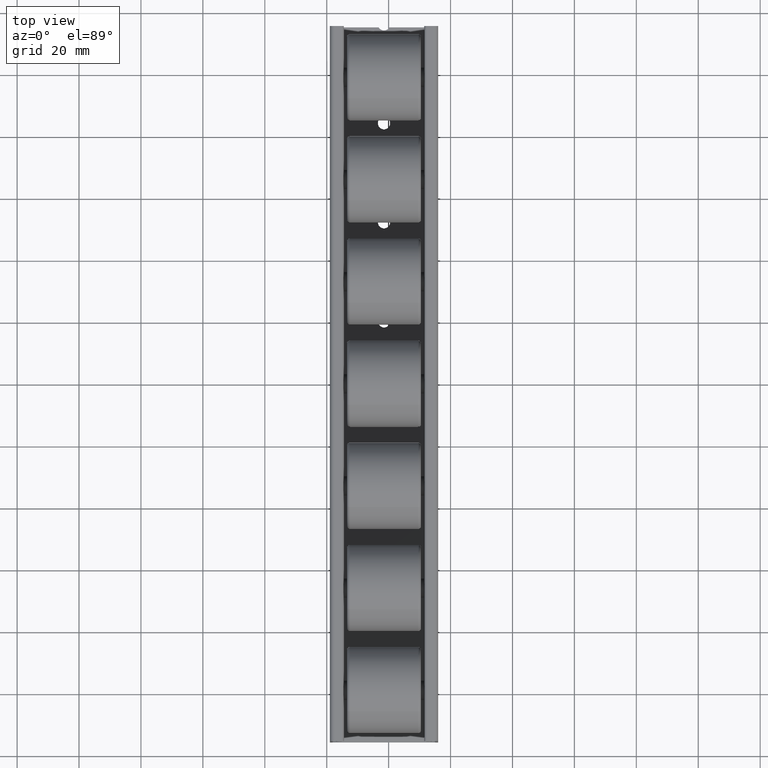
[diagram: clean part render]
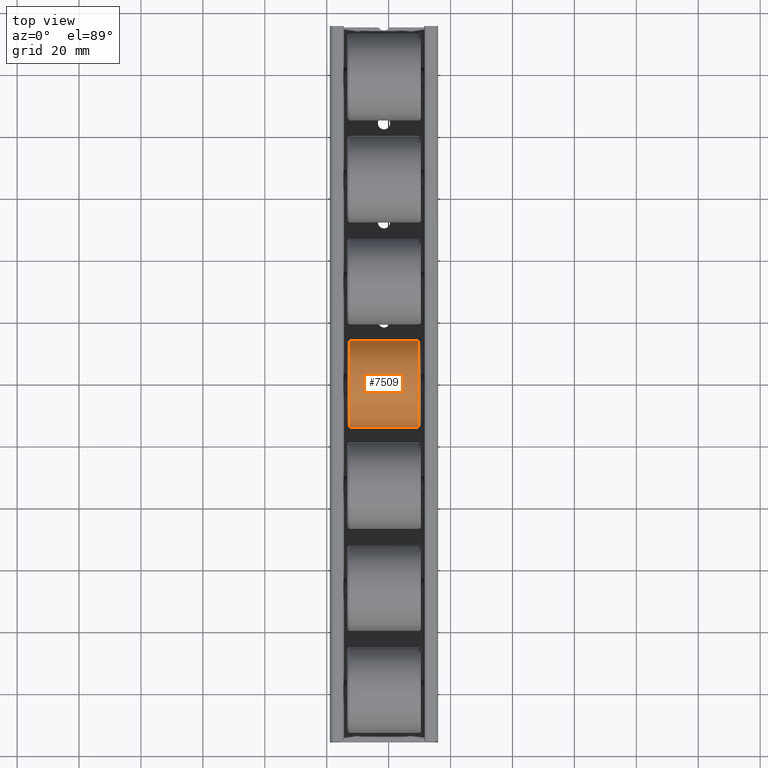
[diagram: same view with one face highlighted and labeled with its STEP entity id]
A machine part, top view. The second image highlights one B-rep face of the part: STEP entity #7509.
In plain terms, the highlighted cylindrical surface (bore or boss wall) has radius 14 mm, axis along (1, -0, 0).
Its self-contained STEP definition (entity closure, byte-faithful):
#122=FACE_BOUND('',#1055,.T.);
#284=CYLINDRICAL_SURFACE('',#8292,14.);
#641=FACE_OUTER_BOUND('',#1054,.T.);
#1054=EDGE_LOOP('',(#6952));
#1055=EDGE_LOOP('',(#6953));
#1477=CIRCLE('',#8291,14.);
#1478=CIRCLE('',#8293,14.);
#3607=VERTEX_POINT('',#12800);
#3608=VERTEX_POINT('',#12803);
#4723=EDGE_CURVE('',#3607,#3607,#1477,.T.);
#4724=EDGE_CURVE('',#3608,#3608,#1478,.T.);
#6952=ORIENTED_EDGE('',*,*,#4724,.F.);
#6953=ORIENTED_EDGE('',*,*,#4723,.T.);
#7509=ADVANCED_FACE('',(#641,#122),#284,.T.);
#8291=AXIS2_PLACEMENT_3D('',#12801,#10557,#10558);
#8292=AXIS2_PLACEMENT_3D('',#12802,#10559,#10560);
#8293=AXIS2_PLACEMENT_3D('',#12804,#10561,#10562);
#10557=DIRECTION('center_axis',(1.,0.,0.));
#10558=DIRECTION('ref_axis',(0.,1.,0.));
#10559=DIRECTION('center_axis',(1.,0.,0.));
#10560=DIRECTION('ref_axis',(0.,1.,0.));
#10561=DIRECTION('center_axis',(1.,0.,0.));
#10562=DIRECTION('ref_axis',(0.,1.,0.));
#12800=CARTESIAN_POINT('',(-11.,14.,0.));
#12801=CARTESIAN_POINT('Origin',(-11.,0.,0.));
#12802=CARTESIAN_POINT('Origin',(0.,0.,0.));
#12803=CARTESIAN_POINT('',(11.,14.,0.));
#12804=CARTESIAN_POINT('Origin',(11.,0.,0.));